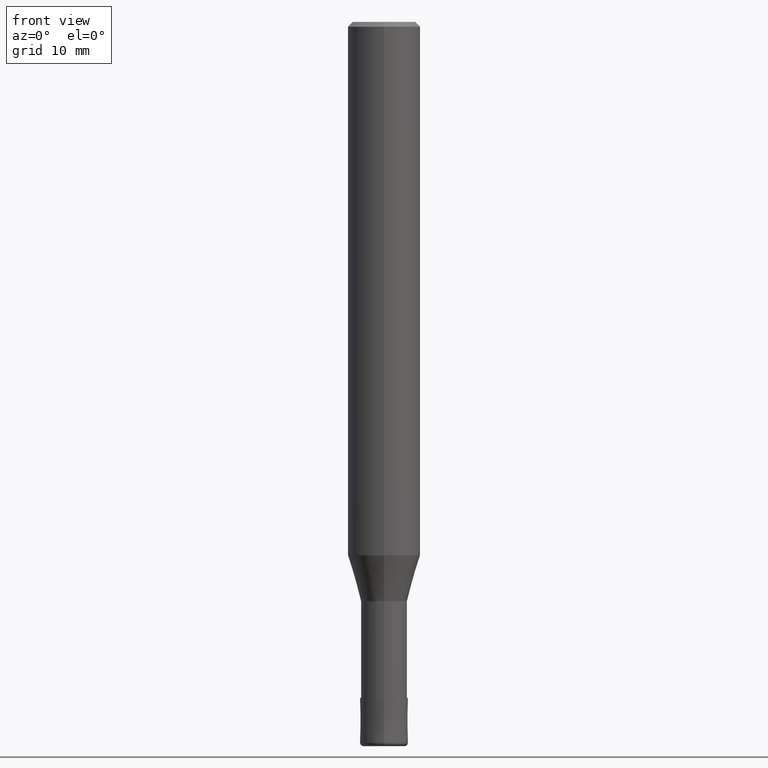
[diagram: clean part render]
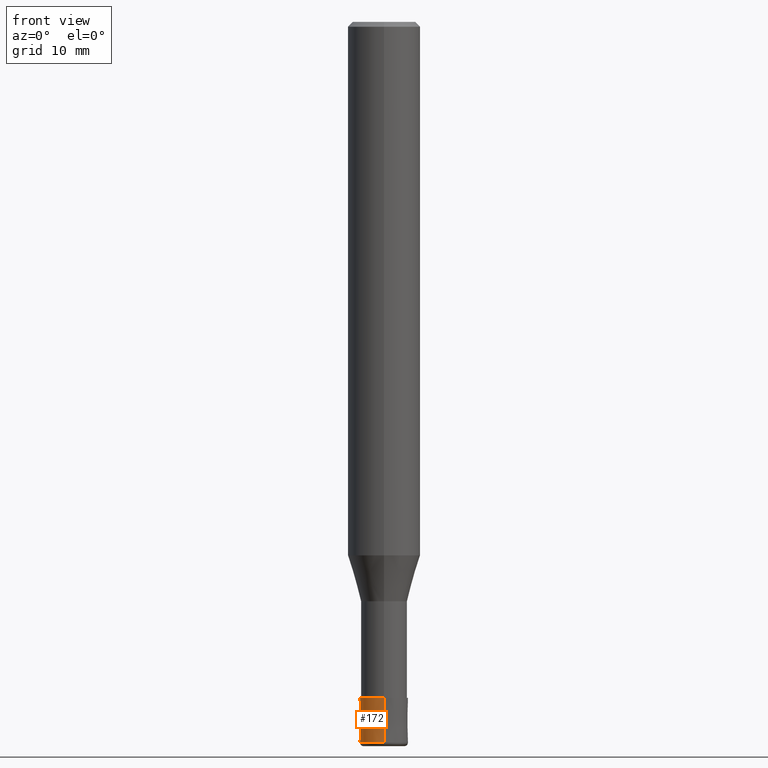
[diagram: same view with one face highlighted and labeled with its STEP entity id]
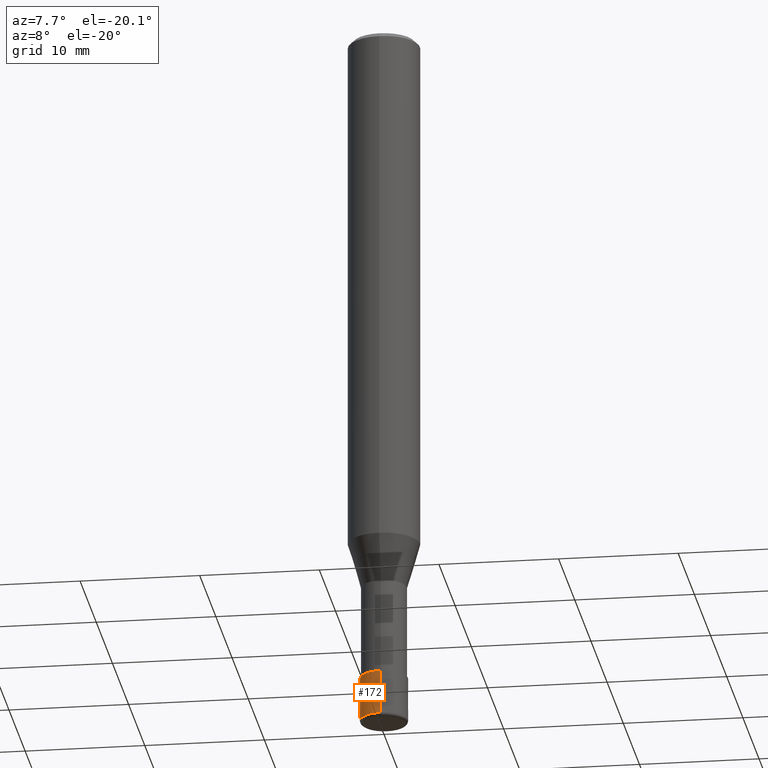
[diagram: same view with one face highlighted and labeled with its STEP entity id]
A machine part, front view. The second image highlights one B-rep face of the part: STEP entity #172.
A second angle (auxiliary view) of the same face is appended — the face is thin or edge-on in the first view.
In plain terms, the highlighted conical surface has half-angle 0.002 deg.
Its self-contained STEP definition (entity closure, byte-faithful):
#138=EDGE_CURVE('',#170,#142,#297,.T.);
#142=VERTEX_POINT('',#301);
#146=EDGE_CURVE('',#142,#160,#305,.T.);
#148=VERTEX_POINT('',#307);
#160=VERTEX_POINT('',#322);
#166=EDGE_CURVE('',#170,#148,#329,.T.);
#170=VERTEX_POINT('',#333);
#172=ADVANCED_FACE('',(#335),#336,.T.);
#186=EDGE_CURVE('',#160,#148,#352,.T.);
#297=LINE('',#470,#471);
#301=CARTESIAN_POINT('',(2.44909024700937E-016,-1.9999,-56.0));
#305=CIRCLE('',#482,1.9999);
#307=CARTESIAN_POINT('',(0.0,2.0,-59.7));
#322=CARTESIAN_POINT('',(0.0,1.9999,-56.0));
#329=CIRCLE('',#511,2.0);
#333=CARTESIAN_POINT('',(2.44921270764475E-016,-2.0,-59.7));
#335=FACE_OUTER_BOUND('',#519,.T.);
#336=CONICAL_SURFACE('',#520,1.99995,2.70270270204433E-005);
#352=LINE('',#540,#541);
#470=CARTESIAN_POINT('',(2.44915147732706E-016,-1.99995,-57.85));
#471=VECTOR('',#662,1.0);
#482=AXIS2_PLACEMENT_3D('',#669,#670,#671);
#511=AXIS2_PLACEMENT_3D('',#706,#707,#708);
#519=EDGE_LOOP('',(#711,#712,#713,#714));
#520=AXIS2_PLACEMENT_3D('',#715,#716,#717);
#540=CARTESIAN_POINT('',(-2.44915147732706E-016,1.99995,-57.85));
#541=VECTOR('',#741,1.0);
#662=DIRECTION('',(-3.30974690101346E-021,2.7027027017153E-005,0.99999999963477));
#669=CARTESIAN_POINT('',(0.0,0.0,-56.0));
#670=DIRECTION('',(0.0,0.0,-1.0));
#671=DIRECTION('',(0.0,1.0,0.0));
#706=CARTESIAN_POINT('',(0.0,0.0,-59.7));
#707=DIRECTION('',(0.0,0.0,-1.0));
#708=DIRECTION('',(0.0,1.0,0.0));
#711=ORIENTED_EDGE('',*,*,#186,.T.);
#712=ORIENTED_EDGE('',*,*,#166,.F.);
#713=ORIENTED_EDGE('',*,*,#138,.T.);
#714=ORIENTED_EDGE('',*,*,#146,.T.);
#715=CARTESIAN_POINT('',(0.0,0.0,-57.85));
#716=DIRECTION('',(0.0,-0.0,-1.0));
#717=DIRECTION('',(0.0,1.0,0.0));
#741=DIRECTION('',(-3.30974690101346E-021,2.7027027017153E-005,-0.99999999963477));